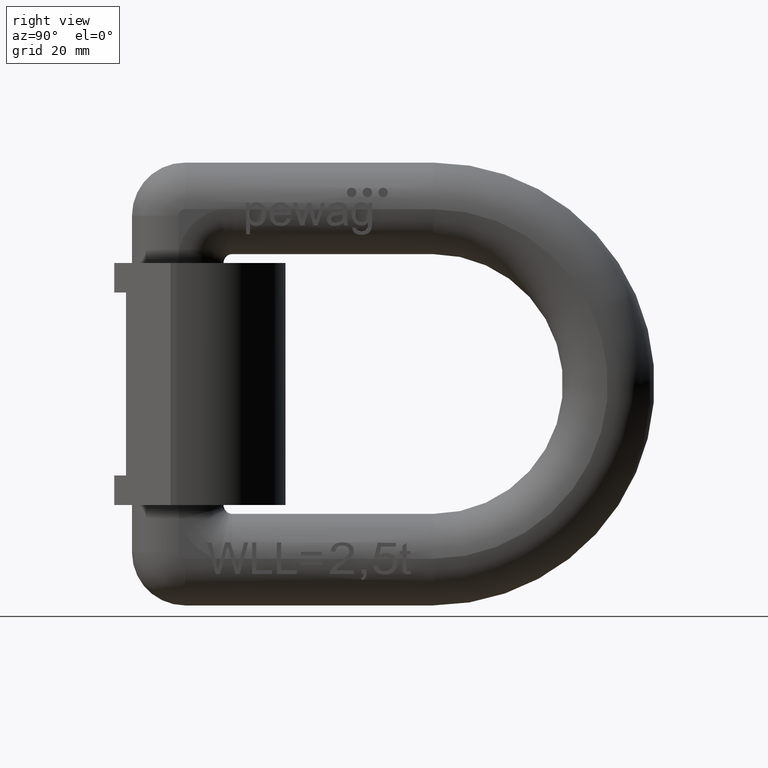
[diagram: clean part render]
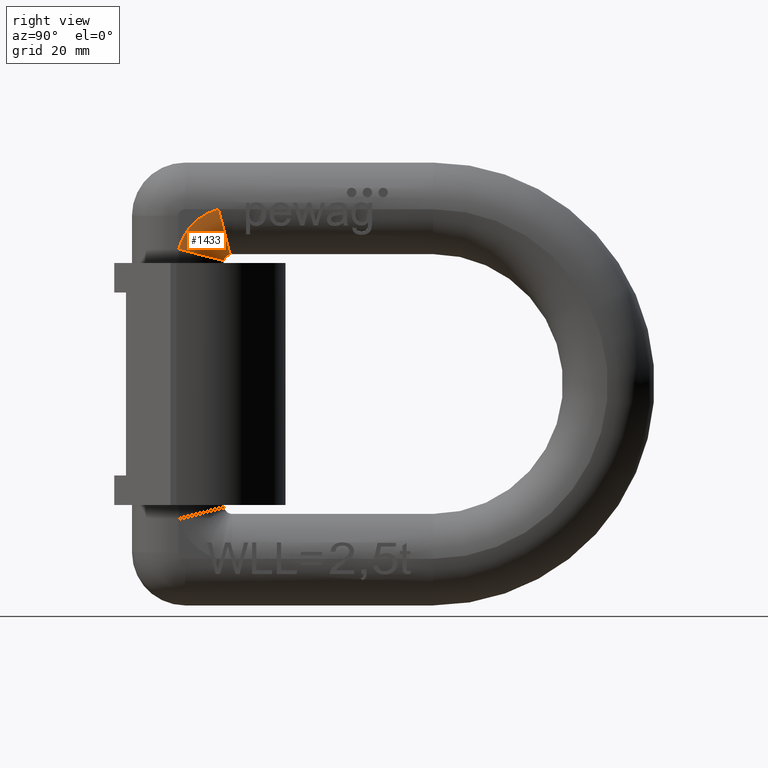
[diagram: same view with one face highlighted and labeled with its STEP entity id]
A machine part, right view. The second image highlights one B-rep face of the part: STEP entity #1433.
In plain terms, the highlighted toroidal blend (fillet) surface has major radius 9.4 mm and minor (blend) radius 7.9 mm.
Its self-contained STEP definition (entity closure, byte-faithful):
#198=TOROIDAL_SURFACE('',#9400,9.4,7.9);
#1433=ADVANCED_FACE('',(#2128),#198,.T.);
#2128=FACE_OUTER_BOUND('',#2616,.T.);
#2616=EDGE_LOOP('',(#4642,#4643,#4644,#4645));
#2836=CIRCLE('',#9080,1.5);
#2903=CIRCLE('',#9343,9.4);
#2933=CIRCLE('',#9396,7.9);
#2935=CIRCLE('',#9399,7.9);
#4642=ORIENTED_EDGE('',*,*,#7402,.T.);
#4643=ORIENTED_EDGE('',*,*,#7286,.F.);
#4644=ORIENTED_EDGE('',*,*,#7407,.F.);
#4645=ORIENTED_EDGE('',*,*,#6547,.F.);
#5646=VERTEX_POINT('',#11416);
#5647=VERTEX_POINT('',#11418);
#6109=VERTEX_POINT('',#15475);
#6161=VERTEX_POINT('',#16068);
#6547=EDGE_CURVE('',#5646,#5647,#2836,.T.);
#7286=EDGE_CURVE('',#6161,#6109,#2903,.T.);
#7402=EDGE_CURVE('',#5646,#6109,#2933,.T.);
#7407=EDGE_CURVE('',#5647,#6161,#2935,.T.);
#9080=AXIS2_PLACEMENT_3D('',#11417,#9685,#9686);
#9343=AXIS2_PLACEMENT_3D('',#16069,#10561,#10562);
#9396=AXIS2_PLACEMENT_3D('',#16681,#10701,#10702);
#9399=AXIS2_PLACEMENT_3D('',#16711,#10707,#10708);
#9400=AXIS2_PLACEMENT_3D('',#16712,#10709,#10710);
#9685=DIRECTION('',(1.,0.,2.34291072916505E-15));
#9686=DIRECTION('',(2.34006968894789E-15,0.,-1.));
#10561=DIRECTION('',(-1.,0.,-2.34291072916505E-15));
#10562=DIRECTION('',(2.3990856582658E-15,0.,-1.));
#10701=DIRECTION('',(5.87184224498418E-16,-0.968085106382979,-0.250621680625311));
#10702=DIRECTION('',(-2.26790391143329E-15,-0.250621680625312,0.968085106382979));
#10707=DIRECTION('',(3.22851147224694E-15,-0.250621680625313,-0.968085106382979));
#10708=DIRECTION('',(-5.86704340174118E-16,-0.968085106382979,0.250621680625313));
#10709=DIRECTION('',(1.,0.,2.34291072916505E-15));
#10710=DIRECTION('',(2.34309877016195E-15,0.,-1.));
#11416=CARTESIAN_POINT('',(0.099999999999948,19.624067479062,21.9521276595745));
#11417=CARTESIAN_POINT('',(0.0999999999999514,20.,20.5));
#11418=CARTESIAN_POINT('',(0.0999999999999505,18.5478723404255,20.875932520938));
#15475=CARTESIAN_POINT('',(7.99999999999993,17.6441562021221,29.6));
#16068=CARTESIAN_POINT('',(7.99999999999995,10.9,22.855843797878));
#16069=CARTESIAN_POINT('',(7.99999999999995,20.,20.5));
#16681=CARTESIAN_POINT('',(0.0999999999999309,17.6441562021221,29.6));
#16711=CARTESIAN_POINT('',(0.0999999999999459,10.9,22.8558437978779));
#16712=CARTESIAN_POINT('',(0.0999999999999514,20.,20.5));